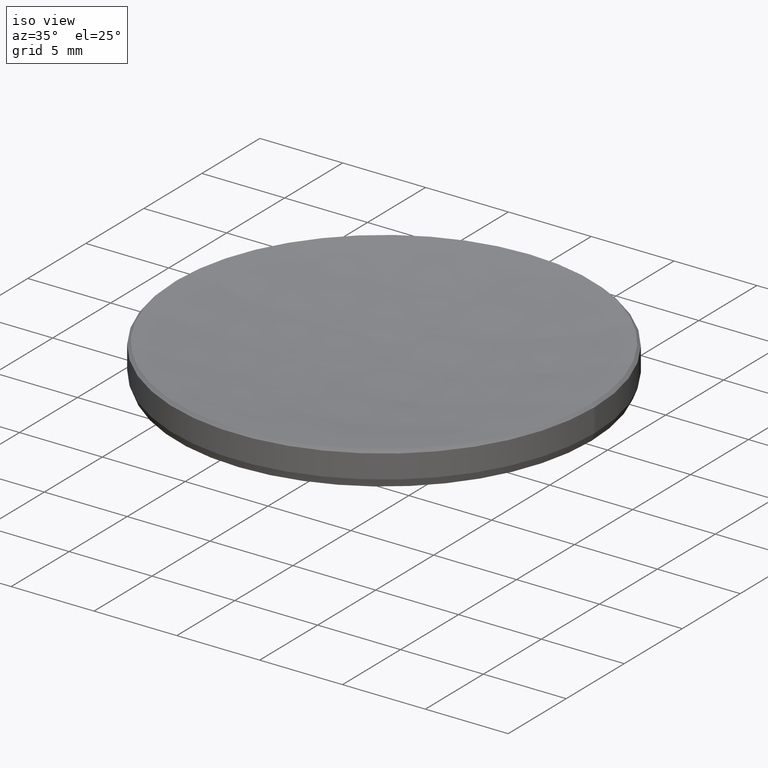
[diagram: clean part render]
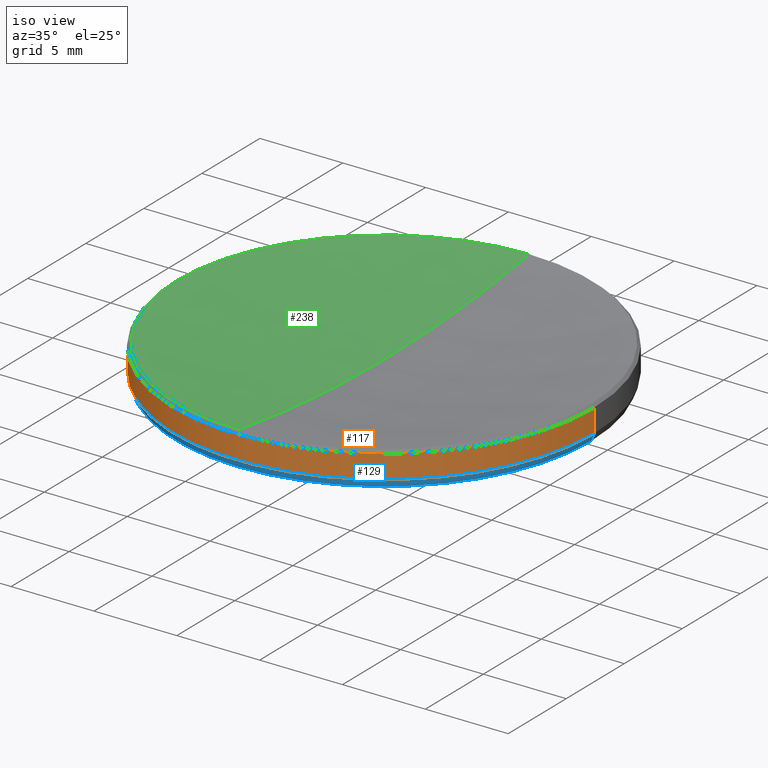
[diagram: same view with three faces highlighted in distinct colors, each labeled with its STEP entity id]
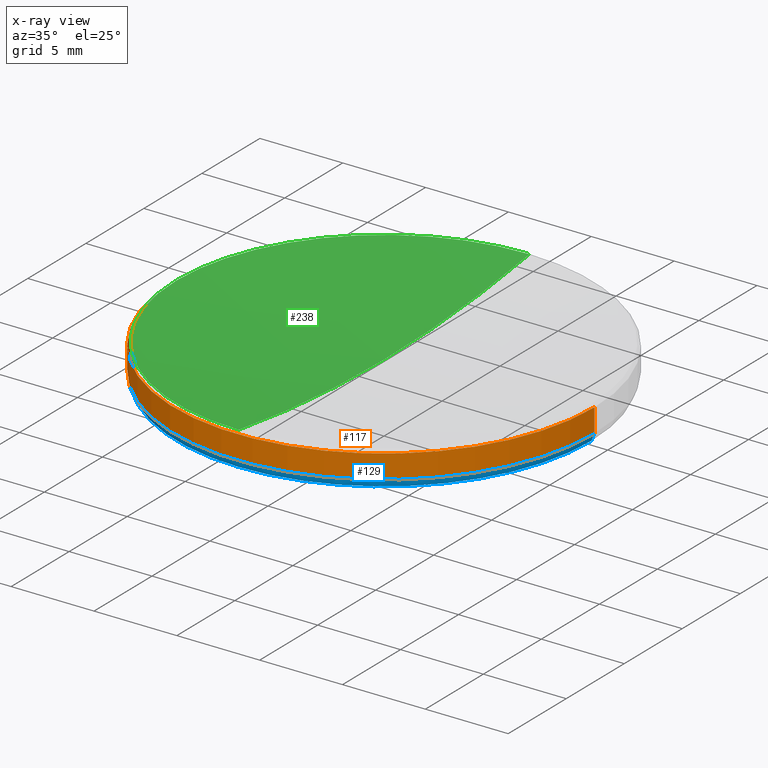
[diagram: x-ray of the same camera — body ghosted, the three highlighted faces saturated]
A machine part, iso view with three faces highlighted in distinct colors.
The next image is the same camera in x-ray (body ghosted, the three faces saturated) — at least one of them is partly hidden behind the body in this view.
Their STEP definitions:

[orange] entity #117 — the highlighted cylindrical surface (partial cylindrical patch) has radius 12.7 mm, axis along (-0, -0, -1).
#8 = AXIS2_PLACEMENT_3D ( 'NONE', #27, #166, #263 ) ;
#22 = ORIENTED_EDGE ( 'NONE', *, *, #240, .T. ) ;
#27 = CARTESIAN_POINT ( 'NONE',  ( 0.000000000000000000, 0.000000000000000000, 4.382064373895533826 ) ) ;
#28 = CIRCLE ( 'NONE', #213, 12.69999999999999929 ) ;
#49 = EDGE_CURVE ( 'NONE', #77, #109, #28, .T. ) ;
#64 = AXIS2_PLACEMENT_3D ( 'NONE', #292, #68, #92 ) ;
#68 = DIRECTION ( 'NONE',  ( -0.000000000000000000, -0.000000000000000000, -1.000000000000000000 ) ) ;
#77 = VERTEX_POINT ( 'NONE', #290 ) ;
#85 = DIRECTION ( 'NONE',  ( -0.000000000000000000, -0.000000000000000000, -1.000000000000000000 ) ) ;
#92 = DIRECTION ( 'NONE',  ( -1.000000000000000000, 0.000000000000000000, 0.000000000000000000 ) ) ;
#109 = VERTEX_POINT ( 'NONE', #324 ) ;
#116 = DIRECTION ( 'NONE',  ( 0.000000000000000000, 0.000000000000000000, -1.000000000000000000 ) ) ;
#117 = ADVANCED_FACE ( 'NONE', ( #217 ), #317, .T. ) ;
#121 = LINE ( 'NONE', #125, #239 ) ;
#125 = CARTESIAN_POINT ( 'NONE',  ( 12.69999999999999929, 1.555301434917138433E-15, 10.00000000000000000 ) ) ;
#158 = CARTESIAN_POINT ( 'NONE',  ( -12.69999999999999929, 0.000000000000000000, 10.00000000000000000 ) ) ;
#166 = DIRECTION ( 'NONE',  ( -0.000000000000000000, -0.000000000000000000, 1.000000000000000000 ) ) ;
#174 = ORIENTED_EDGE ( 'NONE', *, *, #284, .T. ) ;
#182 = VERTEX_POINT ( 'NONE', #305 ) ;
#195 = EDGE_CURVE ( 'NONE', #77, #182, #121, .T. ) ;
#200 = ORIENTED_EDGE ( 'NONE', *, *, #195, .F. ) ;
#205 = EDGE_LOOP ( 'NONE', ( #200, #278, #22, #174 ) ) ;
#213 = AXIS2_PLACEMENT_3D ( 'NONE', #243, #116, #300 ) ;
#217 = FACE_OUTER_BOUND ( 'NONE', #205, .T. ) ;
#223 = DIRECTION ( 'NONE',  ( -0.000000000000000000, -0.000000000000000000, -1.000000000000000000 ) ) ;
#239 = VECTOR ( 'NONE', #223, 1000.000000000000000 ) ;
#240 = EDGE_CURVE ( 'NONE', #109, #288, #331, .T. ) ;
#243 = CARTESIAN_POINT ( 'NONE',  ( 0.000000000000000000, 0.000000000000000000, 5.799999999999999822 ) ) ;
#261 = CARTESIAN_POINT ( 'NONE',  ( -12.69999999999999929, 0.000000000000000000, 4.382064373895533826 ) ) ;
#263 = DIRECTION ( 'NONE',  ( -1.000000000000000000, 0.000000000000000000, 0.000000000000000000 ) ) ;
#278 = ORIENTED_EDGE ( 'NONE', *, *, #49, .T. ) ;
#280 = CIRCLE ( 'NONE', #8, 12.69999999999999929 ) ;
#284 = EDGE_CURVE ( 'NONE', #288, #182, #280, .T. ) ;
#288 = VERTEX_POINT ( 'NONE', #261 ) ;
#290 = CARTESIAN_POINT ( 'NONE',  ( 12.69999999999999929, 1.555301434917138433E-15, 5.799999999999999822 ) ) ;
#292 = CARTESIAN_POINT ( 'NONE',  ( 0.000000000000000000, 0.000000000000000000, 10.00000000000000000 ) ) ;
#299 = VECTOR ( 'NONE', #85, 1000.000000000000000 ) ;
#300 = DIRECTION ( 'NONE',  ( 1.000000000000000000, 0.000000000000000000, 0.000000000000000000 ) ) ;
#305 = CARTESIAN_POINT ( 'NONE',  ( 12.69999999999999929, 1.555301434917138433E-15, 4.382064373895533826 ) ) ;
#317 = CYLINDRICAL_SURFACE ( 'NONE', #64, 12.69999999999999929 ) ;
#324 = CARTESIAN_POINT ( 'NONE',  ( -12.69999999999999929, 0.000000000000000000, 5.799999999999999822 ) ) ;
#331 = LINE ( 'NONE', #158, #299 ) ;

[blue] entity #129 — the highlighted conical surface has half-angle 21.725 deg.
#3 = ORIENTED_EDGE ( 'NONE', *, *, #284, .F. ) ;
#8 = AXIS2_PLACEMENT_3D ( 'NONE', #27, #166, #263 ) ;
#12 = CIRCLE ( 'NONE', #194, 12.51660009051966682 ) ;
#23 = CARTESIAN_POINT ( 'NONE',  ( -12.69999999999999929, 1.555301434917138433E-15, 4.382064373895533826 ) ) ;
#27 = CARTESIAN_POINT ( 'NONE',  ( 0.000000000000000000, 0.000000000000000000, 4.382064373895533826 ) ) ;
#36 = CIRCLE ( 'NONE', #219, 12.51660009051966682 ) ;
#38 = FACE_OUTER_BOUND ( 'NONE', #257, .T. ) ;
#47 = DIRECTION ( 'NONE',  ( 0.000000000000000000, 0.000000000000000000, -1.000000000000000000 ) ) ;
#55 = VECTOR ( 'NONE', #150, 1000.000000000000114 ) ;
#69 = ORIENTED_EDGE ( 'NONE', *, *, #232, .F. ) ;
#78 = VECTOR ( 'NONE', #178, 1000.000000000000114 ) ;
#83 = VERTEX_POINT ( 'NONE', #273 ) ;
#94 = CARTESIAN_POINT ( 'NONE',  ( 0.000000000000000000, 0.000000000000000000, 3.921783238787050596 ) ) ;
#128 = CARTESIAN_POINT ( 'NONE',  ( 0.000000000000000000, 0.000000000000000000, 3.921783238787050596 ) ) ;
#129 = ADVANCED_FACE ( 'NONE', ( #38 ), #147, .T. ) ;
#141 = CARTESIAN_POINT ( 'NONE',  ( 0.000000000000000000, 0.000000000000000000, 4.382064373895533826 ) ) ;
#147 = CONICAL_SURFACE ( 'NONE', #306, 12.69999999999999929, 0.3791711273704264085 ) ;
#148 = CARTESIAN_POINT ( 'NONE',  ( 12.51660009051966860, 0.000000000000000000, 3.921783238787050596 ) ) ;
#150 = DIRECTION ( 'NONE',  ( 0.3701505973859326448, 0.000000000000000000, 0.9289717623560131976 ) ) ;
#166 = DIRECTION ( 'NONE',  ( -0.000000000000000000, -0.000000000000000000, 1.000000000000000000 ) ) ;
#178 = DIRECTION ( 'NONE',  ( -0.3701505973859326448, 4.533037442911630369E-17, 0.9289717623560131976 ) ) ;
#181 = EDGE_CURVE ( 'NONE', #227, #313, #12, .T. ) ;
#182 = VERTEX_POINT ( 'NONE', #305 ) ;
#187 = EDGE_CURVE ( 'NONE', #227, #182, #276, .T. ) ;
#194 = AXIS2_PLACEMENT_3D ( 'NONE', #94, #47, #253 ) ;
#208 = ORIENTED_EDGE ( 'NONE', *, *, #249, .F. ) ;
#211 = CARTESIAN_POINT ( 'NONE',  ( -1.532841423706237562E-15, -12.51660009051965972, 3.921783238787048820 ) ) ;
#219 = AXIS2_PLACEMENT_3D ( 'NONE', #128, #258, #230 ) ;
#227 = VERTEX_POINT ( 'NONE', #148 ) ;
#230 = DIRECTION ( 'NONE',  ( 1.000000000000000000, 0.000000000000000000, 0.000000000000000000 ) ) ;
#231 = ORIENTED_EDGE ( 'NONE', *, *, #181, .F. ) ;
#232 = EDGE_CURVE ( 'NONE', #83, #288, #308, .T. ) ;
#242 = DIRECTION ( 'NONE',  ( 1.000000000000000000, 0.000000000000000000, 0.000000000000000000 ) ) ;
#249 = EDGE_CURVE ( 'NONE', #313, #83, #36, .T. ) ;
#253 = DIRECTION ( 'NONE',  ( 1.000000000000000000, 0.000000000000000000, 0.000000000000000000 ) ) ;
#257 = EDGE_LOOP ( 'NONE', ( #69, #208, #231, #311, #3 ) ) ;
#258 = DIRECTION ( 'NONE',  ( 0.000000000000000000, 0.000000000000000000, -1.000000000000000000 ) ) ;
#261 = CARTESIAN_POINT ( 'NONE',  ( -12.69999999999999929, 0.000000000000000000, 4.382064373895533826 ) ) ;
#263 = DIRECTION ( 'NONE',  ( -1.000000000000000000, 0.000000000000000000, 0.000000000000000000 ) ) ;
#273 = CARTESIAN_POINT ( 'NONE',  ( -12.51660009051966860, 1.544071429311688688E-15, 3.921783238787050596 ) ) ;
#276 = LINE ( 'NONE', #304, #55 ) ;
#280 = CIRCLE ( 'NONE', #8, 12.69999999999999929 ) ;
#284 = EDGE_CURVE ( 'NONE', #288, #182, #280, .T. ) ;
#288 = VERTEX_POINT ( 'NONE', #261 ) ;
#301 = DIRECTION ( 'NONE',  ( -0.000000000000000000, -0.000000000000000000, 1.000000000000000000 ) ) ;
#304 = CARTESIAN_POINT ( 'NONE',  ( 12.69999999999999929, 0.000000000000000000, 4.382064373895533826 ) ) ;
#305 = CARTESIAN_POINT ( 'NONE',  ( 12.69999999999999929, 1.555301434917138433E-15, 4.382064373895533826 ) ) ;
#306 = AXIS2_PLACEMENT_3D ( 'NONE', #141, #301, #242 ) ;
#308 = LINE ( 'NONE', #23, #78 ) ;
#311 = ORIENTED_EDGE ( 'NONE', *, *, #187, .T. ) ;
#313 = VERTEX_POINT ( 'NONE', #211 ) ;

[green] entity #238 — the highlighted spherical surface has radius 82.23 mm.
#5 = EDGE_LOOP ( 'NONE', ( #286, #229, #84, #103 ) ) ;
#13 = CARTESIAN_POINT ( 'NONE',  ( 0.000000000000000000, 12.52687420083781511, 5.973125799162120941 ) ) ;
#14 = DIRECTION ( 'NONE',  ( -0.000000000000000000, -0.000000000000000000, 1.000000000000000000 ) ) ;
#20 = SPHERICAL_SURFACE ( 'NONE', #118, 82.22999999999998977 ) ;
#33 = CARTESIAN_POINT ( 'NONE',  ( -12.52687420083785419, 0.000000000000000000, 5.973125799162120941 ) ) ;
#34 = CARTESIAN_POINT ( 'NONE',  ( 0.000000000000000000, 5.035135314694341706E-15, 5.013356036047661668 ) ) ;
#43 = CARTESIAN_POINT ( 'NONE',  ( -1.534099639337759046E-15, -12.52687420083781511, 5.973125799162120941 ) ) ;
#44 = EDGE_CURVE ( 'NONE', #106, #180, #171, .T. ) ;
#45 = FACE_OUTER_BOUND ( 'NONE', #5, .T. ) ;
#52 = DIRECTION ( 'NONE',  ( 0.000000000000000000, 0.000000000000000000, -1.000000000000000000 ) ) ;
#61 = CIRCLE ( 'NONE', #256, 12.52687420083785419 ) ;
#71 = AXIS2_PLACEMENT_3D ( 'NONE', #247, #320, #270 ) ;
#73 = DIRECTION ( 'NONE',  ( 1.000000000000000000, 0.000000000000000000, 0.000000000000000000 ) ) ;
#84 = ORIENTED_EDGE ( 'NONE', *, *, #172, .T. ) ;
#93 = CARTESIAN_POINT ( 'NONE',  ( 0.000000000000000000, 0.000000000000000000, 87.24335603604764344 ) ) ;
#99 = CARTESIAN_POINT ( 'NONE',  ( 0.000000000000000000, 0.000000000000000000, 87.24335603604764344 ) ) ;
#103 = ORIENTED_EDGE ( 'NONE', *, *, #110, .T. ) ;
#106 = VERTEX_POINT ( 'NONE', #34 ) ;
#110 = EDGE_CURVE ( 'NONE', #265, #180, #319, .T. ) ;
#115 = DIRECTION ( 'NONE',  ( 1.000000000000000000, 0.000000000000000000, 0.000000000000000000 ) ) ;
#118 = AXIS2_PLACEMENT_3D ( 'NONE', #99, #155, #233 ) ;
#127 = DIRECTION ( 'NONE',  ( -0.000000000000000000, -0.000000000000000000, 1.000000000000000000 ) ) ;
#131 = VERTEX_POINT ( 'NONE', #13 ) ;
#151 = CIRCLE ( 'NONE', #252, 82.22999999999998977 ) ;
#155 = DIRECTION ( 'NONE',  ( -1.000000000000000000, 0.000000000000000000, 0.000000000000000000 ) ) ;
#171 = CIRCLE ( 'NONE', #71, 82.22999999999998977 ) ;
#172 = EDGE_CURVE ( 'NONE', #131, #265, #61, .T. ) ;
#180 = VERTEX_POINT ( 'NONE', #43 ) ;
#185 = CARTESIAN_POINT ( 'NONE',  ( 0.000000000000000000, 0.000000000000000000, 5.973125799162120941 ) ) ;
#212 = EDGE_CURVE ( 'NONE', #106, #131, #151, .T. ) ;
#229 = ORIENTED_EDGE ( 'NONE', *, *, #212, .T. ) ;
#233 = DIRECTION ( 'NONE',  ( 0.000000000000000000, 1.000000000000000000, 0.000000000000000000 ) ) ;
#238 = ADVANCED_FACE ( 'NONE', ( #45 ), #20, .F. ) ;
#247 = CARTESIAN_POINT ( 'NONE',  ( 0.000000000000000000, 0.000000000000000000, 87.24335603604764344 ) ) ;
#252 = AXIS2_PLACEMENT_3D ( 'NONE', #93, #73, #52 ) ;
#256 = AXIS2_PLACEMENT_3D ( 'NONE', #279, #127, #325 ) ;
#265 = VERTEX_POINT ( 'NONE', #33 ) ;
#270 = DIRECTION ( 'NONE',  ( -1.224646799147353207E-16, -1.000000000000000000, 0.000000000000000000 ) ) ;
#279 = CARTESIAN_POINT ( 'NONE',  ( 0.000000000000000000, 0.000000000000000000, 5.973125799162120941 ) ) ;
#286 = ORIENTED_EDGE ( 'NONE', *, *, #44, .F. ) ;
#310 = AXIS2_PLACEMENT_3D ( 'NONE', #185, #14, #115 ) ;
#319 = CIRCLE ( 'NONE', #310, 12.52687420083785419 ) ;
#320 = DIRECTION ( 'NONE',  ( -1.000000000000000000, 1.224646799147353207E-16, 0.000000000000000000 ) ) ;
#325 = DIRECTION ( 'NONE',  ( 1.000000000000000000, 0.000000000000000000, 0.000000000000000000 ) ) ;